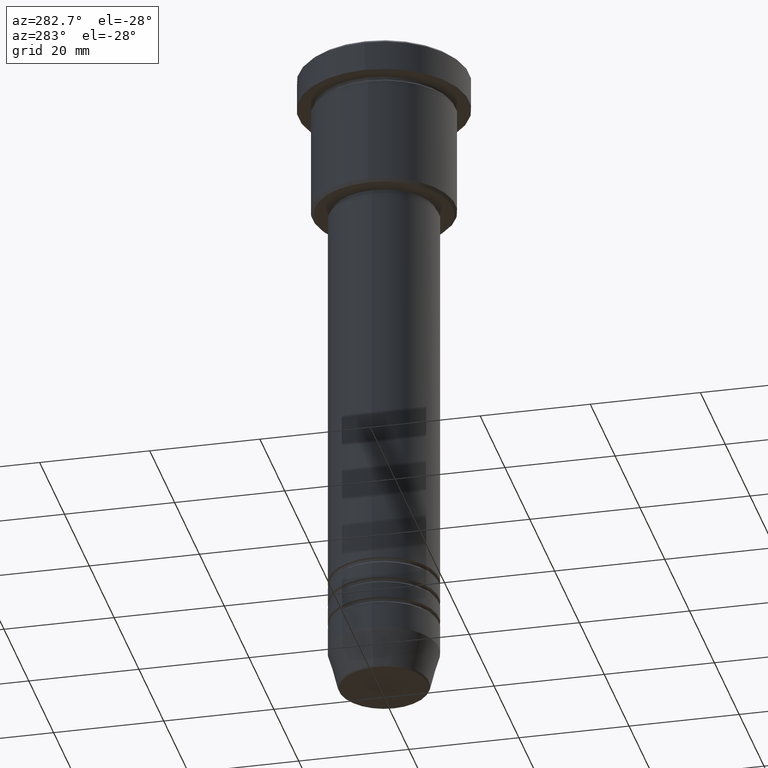
[diagram: clean part render]
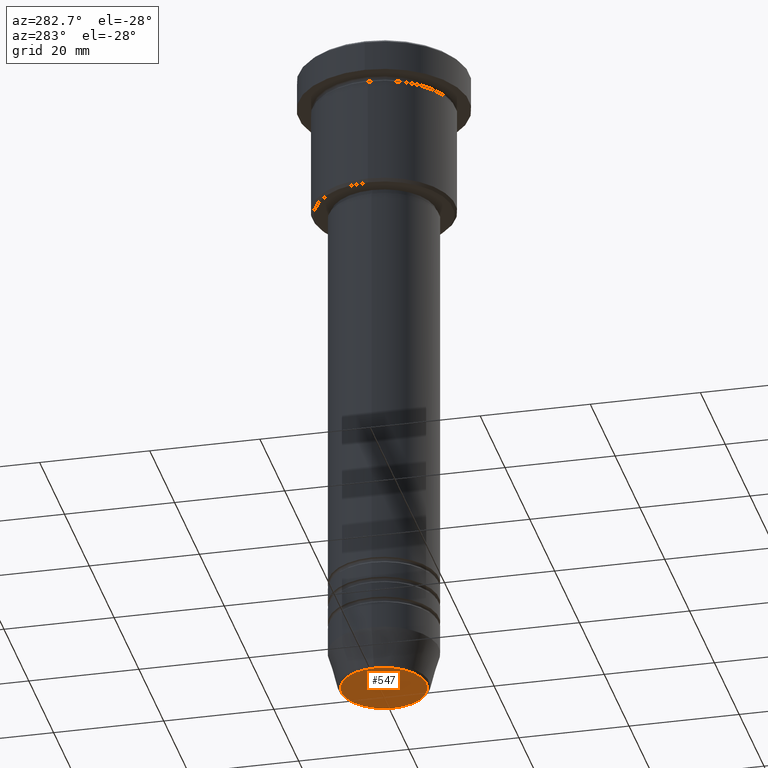
[diagram: same view with one face highlighted and labeled with its STEP entity id]
A machine part, auxiliary view. The second image highlights one B-rep face of the part: STEP entity #547.
In plain terms, the highlighted planar face has unit normal (0, -0, 1).
Its self-contained STEP definition (entity closure, byte-faithful):
#11 = CIRCLE ( 'NONE', #1025, 7.740692158992660055 ) ;
#28 = VERTEX_POINT ( 'NONE', #188 ) ;
#53 = AXIS2_PLACEMENT_3D ( 'NONE', #1071, #963, #602 ) ;
#68 = EDGE_CURVE ( 'NONE', #28, #553, #11, .T. ) ;
#116 = ORIENTED_EDGE ( 'NONE', *, *, #1113, .T. ) ;
#159 = CARTESIAN_POINT ( 'NONE',  ( 0.000000000000000000, 0.000000000000000000, -122.0000000000000000 ) ) ;
#188 = CARTESIAN_POINT ( 'NONE',  ( 7.740692158992660055, 0.000000000000000000, -122.0000000000000000 ) ) ;
#208 = DIRECTION ( 'NONE',  ( 0.000000000000000000, 0.000000000000000000, -1.000000000000000000 ) ) ;
#260 = DIRECTION ( 'NONE',  ( 1.000000000000000000, 0.000000000000000000, 0.000000000000000000 ) ) ;
#295 = ORIENTED_EDGE ( 'NONE', *, *, #68, .T. ) ;
#498 = AXIS2_PLACEMENT_3D ( 'NONE', #159, #527, #260 ) ;
#525 = EDGE_LOOP ( 'NONE', ( #295, #116 ) ) ;
#527 = DIRECTION ( 'NONE',  ( 0.000000000000000000, 0.000000000000000000, -1.000000000000000000 ) ) ;
#547 = ADVANCED_FACE ( 'NONE', ( #879 ), #711, .F. ) ;
#553 = VERTEX_POINT ( 'NONE', #979 ) ;
#572 = DIRECTION ( 'NONE',  ( 1.000000000000000000, 0.000000000000000000, 0.000000000000000000 ) ) ;
#602 = DIRECTION ( 'NONE',  ( 1.000000000000000000, 0.000000000000000000, 0.000000000000000000 ) ) ;
#711 = PLANE ( 'NONE',  #53 ) ;
#879 = FACE_OUTER_BOUND ( 'NONE', #525, .T. ) ;
#963 = DIRECTION ( 'NONE',  ( 0.000000000000000000, -0.000000000000000000, 1.000000000000000000 ) ) ;
#979 = CARTESIAN_POINT ( 'NONE',  ( -7.740692158992660055, 9.775343368540041107E-16, -122.0000000000000000 ) ) ;
#1023 = CARTESIAN_POINT ( 'NONE',  ( 0.000000000000000000, 0.000000000000000000, -122.0000000000000000 ) ) ;
#1025 = AXIS2_PLACEMENT_3D ( 'NONE', #1023, #208, #572 ) ;
#1071 = CARTESIAN_POINT ( 'NONE',  ( 0.000000000000000000, 0.000000000000000000, -122.0000000000000000 ) ) ;
#1113 = EDGE_CURVE ( 'NONE', #553, #28, #1142, .T. ) ;
#1142 = CIRCLE ( 'NONE', #498, 7.740692158992660055 ) ;